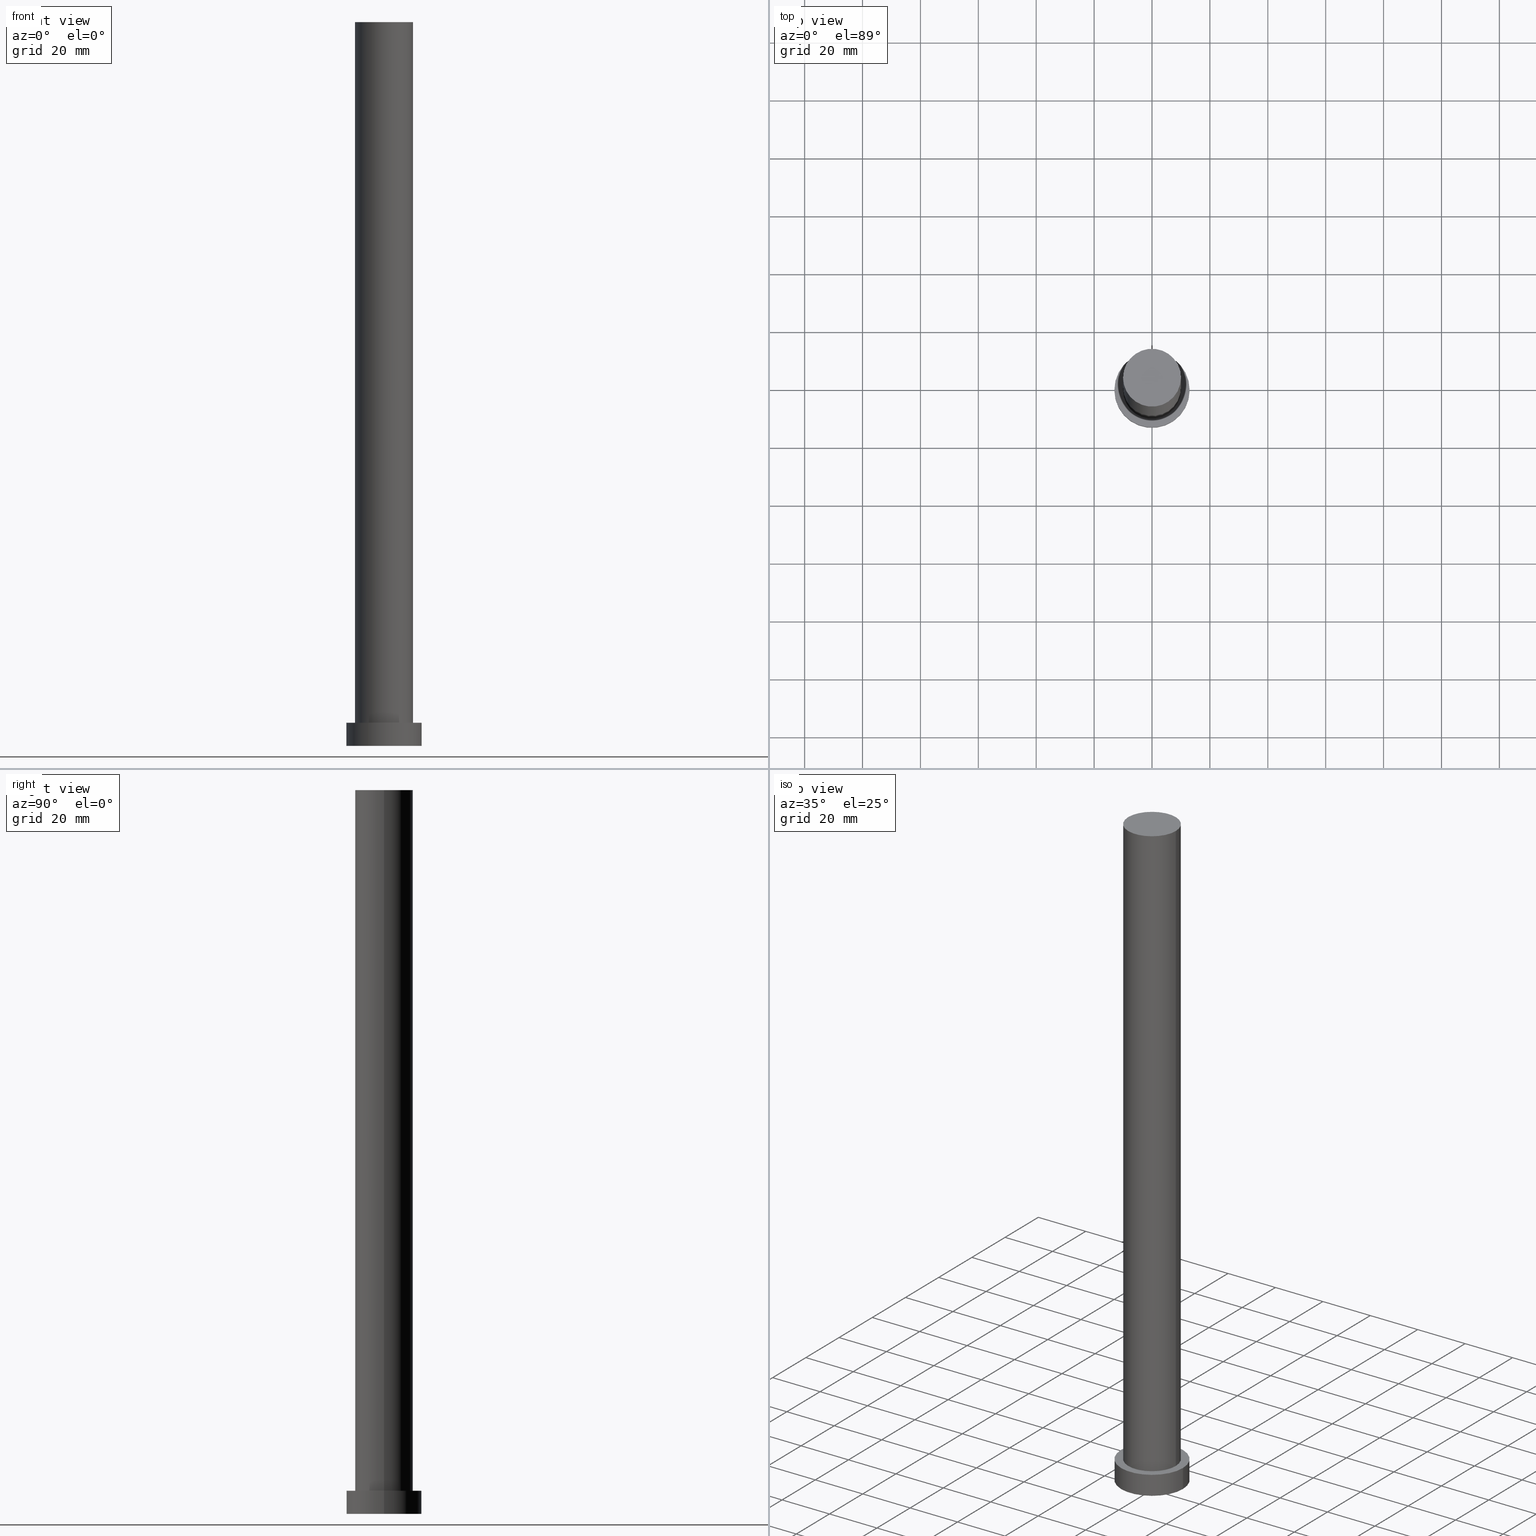
[diagram: canonical four-view strip — front | top / right | iso, engineering-drawing reading convention]
A machine part, canonical four-view strip (front | top / right | iso — engineering-drawing reading convention). The complete STEP part file that produces these views, byte-faithful:
ISO-10303-21;
HEADER;
FILE_DESCRIPTION (( 'STEP AP203' ),
    '1' );
FILE_NAME ('c22b.STEP',
    '2023-02-13T07:33:58',
    ( '' ),
    ( '' ),
    'SwSTEP 2.0',
    'SolidWorks 2019',
    '' );
FILE_SCHEMA (( 'CONFIG_CONTROL_DESIGN' ));
ENDSEC;

DATA;
#1 = CIRCLE ( 'NONE', #22, 13.00000000000000178 ) ;
#2 = CYLINDRICAL_SURFACE ( 'NONE', #247, 13.00000000000000178 ) ;
#3 = EDGE_CURVE ( 'NONE', #29, #190, #231, .T. ) ;
#4 = DIRECTION ( 'NONE',  ( -0.000000000000000000, -0.000000000000000000, -1.000000000000000000 ) ) ;
#5 = DIRECTION ( 'NONE',  ( 0.000000000000000000, 0.000000000000000000, 1.000000000000000000 ) ) ;
#6 = APPROVAL_ROLE ( '' ) ;
#7 = COORDINATED_UNIVERSAL_TIME_OFFSET ( 1, 0, .AHEAD. ) ;
#8 = CARTESIAN_POINT ( 'NONE',  ( 0.000000000000000000, 0.000000000000000000, 8.000000000000000000 ) ) ;
#9 = PERSON_AND_ORGANIZATION ( #131, #233 ) ;
#10 = LOCAL_TIME ( 8, 33, 58.00000000000000000, #162 ) ;
#11 = AXIS2_PLACEMENT_3D ( 'NONE', #8, #80, #246 ) ;
#12 = APPROVAL_STATUS ( 'not_yet_approved' ) ;
#13 = ORIENTED_EDGE ( 'NONE', *, *, #182, .F. ) ;
#14 = DIRECTION ( 'NONE',  ( 1.000000000000000000, 0.000000000000000000, -0.000000000000000000 ) ) ;
#15 = ORIENTED_EDGE ( 'NONE', *, *, #189, .T. ) ;
#16 = ADVANCED_FACE ( 'NONE', ( #244 ), #201, .F. ) ;
#17 = SHAPE_DEFINITION_REPRESENTATION ( #65, #137 ) ;
#18 = VERTEX_POINT ( 'NONE', #25 ) ;
#19 = DIRECTION ( 'NONE',  ( 1.000000000000000000, 0.000000000000000000, 0.000000000000000000 ) ) ;
#20 = CARTESIAN_POINT ( 'NONE',  ( 0.000000000000000000, 0.000000000000000000, 0.000000000000000000 ) ) ;
#21 = CIRCLE ( 'NONE', #81, 10.00000000000000000 ) ;
#22 = AXIS2_PLACEMENT_3D ( 'NONE', #23, #179, #180 ) ;
#23 = CARTESIAN_POINT ( 'NONE',  ( 0.000000000000000000, 0.000000000000000000, 8.000000000000000000 ) ) ;
#24 = EDGE_CURVE ( 'NONE', #133, #28, #1, .T. ) ;
#25 = CARTESIAN_POINT ( 'NONE',  ( -13.00000000000000178, 0.000000000000000000, 0.000000000000000000 ) ) ;
#26 = PERSON_AND_ORGANIZATION ( #131, #233 ) ;
#27 = ADVANCED_FACE ( 'NONE', ( #111 ), #2, .T. ) ;
#28 = VERTEX_POINT ( 'NONE', #161 ) ;
#29 = VERTEX_POINT ( 'NONE', #239 ) ;
#30 = AXIS2_PLACEMENT_3D ( 'NONE', #87, #107, #155 ) ;
#31 = ADVANCED_FACE ( 'NONE', ( #146 ), #50, .T. ) ;
#32 = CARTESIAN_POINT ( 'NONE',  ( 0.000000000000000000, 0.000000000000000000, 250.0000000000000000 ) ) ;
#33 = ORIENTED_EDGE ( 'NONE', *, *, #153, .F. ) ;
#34 = DATE_AND_TIME ( #48, #92 ) ;
#35 = AXIS2_PLACEMENT_3D ( 'NONE', #183, #5, #79 ) ;
#36 =( GEOMETRIC_REPRESENTATION_CONTEXT ( 3 ) GLOBAL_UNCERTAINTY_ASSIGNED_CONTEXT ( ( #37 ) ) GLOBAL_UNIT_ASSIGNED_CONTEXT ( ( #228, #223, #215 ) ) REPRESENTATION_CONTEXT ( 'NONE', 'WORKASPACE' ) );
#37 = UNCERTAINTY_MEASURE_WITH_UNIT (LENGTH_MEASURE( 1.000000000000000082E-05 ), #228, 'distance_accuracy_value', 'NONE');
#38 = AXIS2_PLACEMENT_3D ( 'NONE', #52, #130, #210 ) ;
#39 = VECTOR ( 'NONE', #4, 1000.000000000000000 ) ;
#40 = PERSON_AND_ORGANIZATION_ROLE ( 'creator' ) ;
#41 = DIRECTION ( 'NONE',  ( 1.000000000000000000, 0.000000000000000000, -0.000000000000000000 ) ) ;
#42 = EDGE_CURVE ( 'NONE', #70, #158, #21, .T. ) ;
#43 = VECTOR ( 'NONE', #128, 1000.000000000000000 ) ;
#44 = CALENDAR_DATE ( 2023, 13, 2 ) ;
#45 = DIRECTION ( 'NONE',  ( 1.000000000000000000, 0.000000000000000000, 0.000000000000000000 ) ) ;
#46 = PERSON_AND_ORGANIZATION_ROLE ( 'creator' ) ;
#47 = AXIS2_PLACEMENT_3D ( 'NONE', #143, #138, #214 ) ;
#48 = CALENDAR_DATE ( 2023, 13, 2 ) ;
#49 = CARTESIAN_POINT ( 'NONE',  ( 0.000000000000000000, 0.000000000000000000, 250.0000000000000000 ) ) ;
#50 = PLANE ( 'NONE',  #35 ) ;
#51 = EDGE_CURVE ( 'NONE', #18, #99, #108, .T. ) ;
#52 = CARTESIAN_POINT ( 'NONE',  ( 0.000000000000000000, 0.000000000000000000, 0.000000000000000000 ) ) ;
#53 = CC_DESIGN_PERSON_AND_ORGANIZATION_ASSIGNMENT ( #125, #126, ( #78 ) ) ;
#54 = ORIENTED_EDGE ( 'NONE', *, *, #42, .T. ) ;
#55 = VECTOR ( 'NONE', #144, 1000.000000000000000 ) ;
#56 = EDGE_CURVE ( 'NONE', #133, #18, #208, .T. ) ;
#57 = DIRECTION ( 'NONE',  ( -1.000000000000000000, 0.000000000000000000, 0.000000000000000000 ) ) ;
#58 = APPROVAL_STATUS ( 'not_yet_approved' ) ;
#59 = CARTESIAN_POINT ( 'NONE',  ( -10.00000000000000000, 0.000000000000000000, 8.000000000000000000 ) ) ;
#60 = COORDINATED_UNIVERSAL_TIME_OFFSET ( 1, 0, .AHEAD. ) ;
#61 = CARTESIAN_POINT ( 'NONE',  ( -10.00000000000000000, 0.000000000000000000, 250.0000000000000000 ) ) ;
#62 = CALENDAR_DATE ( 2023, 13, 2 ) ;
#63 = EDGE_LOOP ( 'NONE', ( #33, #222, #15, #91 ) ) ;
#64 = PRODUCT_DEFINITION ( 'NEZN�M�', '', #129, #252 ) ;
#65 = PRODUCT_DEFINITION_SHAPE ( 'NONE', 'NONE',  #64 ) ;
#66 = PERSON_AND_ORGANIZATION_ROLE ( 'design_supplier' ) ;
#67 = CC_DESIGN_DATE_AND_TIME_ASSIGNMENT ( #34, #104, ( #78 ) ) ;
#68 = DIRECTION ( 'NONE',  ( 0.000000000000000000, 0.000000000000000000, 1.000000000000000000 ) ) ;
#69 = FACE_OUTER_BOUND ( 'NONE', #151, .T. ) ;
#70 = VERTEX_POINT ( 'NONE', #169 ) ;
#71 = CC_DESIGN_PERSON_AND_ORGANIZATION_ASSIGNMENT ( #197, #40, ( #64 ) ) ;
#72 = MECHANICAL_CONTEXT ( 'NONE', #105, 'mechanical' ) ;
#73 = CARTESIAN_POINT ( 'NONE',  ( 0.000000000000000000, 0.000000000000000000, 8.000000000000000000 ) ) ;
#74 = DIRECTION ( 'NONE',  ( -1.000000000000000000, 0.000000000000000000, 0.000000000000000000 ) ) ;
#75 = PERSON_AND_ORGANIZATION_ROLE ( 'design_owner' ) ;
#76 = APPROVAL ( #12, 'NEUR�EN�' ) ;
#77 = CYLINDRICAL_SURFACE ( 'NONE', #216, 10.00000000000000000 ) ;
#78 = SECURITY_CLASSIFICATION ( '', '', #149 ) ;
#79 = DIRECTION ( 'NONE',  ( 1.000000000000000000, 0.000000000000000000, -0.000000000000000000 ) ) ;
#80 = DIRECTION ( 'NONE',  ( 0.000000000000000000, 0.000000000000000000, 1.000000000000000000 ) ) ;
#81 = AXIS2_PLACEMENT_3D ( 'NONE', #164, #136, #112 ) ;
#82 = AXIS2_PLACEMENT_3D ( 'NONE', #106, #195, #175 ) ;
#83 = CARTESIAN_POINT ( 'NONE',  ( -13.00000000000000178, 0.000000000000000000, 8.000000000000000000 ) ) ;
#84 = APPROVAL_ROLE ( '' ) ;
#85 = EDGE_LOOP ( 'NONE', ( #209, #237 ) ) ;
#86 = APPROVAL_DATE_TIME ( #148, #76 ) ;
#87 = CARTESIAN_POINT ( 'NONE',  ( 0.000000000000000000, 0.000000000000000000, 8.000000000000000000 ) ) ;
#88 = CC_DESIGN_APPROVAL ( #168, ( #129 ) ) ;
#89 = CARTESIAN_POINT ( 'NONE',  ( 10.00000000000000000, 1.224646799147353256E-15, 250.0000000000000000 ) ) ;
#90 = ORIENTED_EDGE ( 'NONE', *, *, #51, .T. ) ;
#91 = ORIENTED_EDGE ( 'NONE', *, *, #227, .T. ) ;
#92 = LOCAL_TIME ( 8, 33, 58.00000000000000000, #225 ) ;
#93 = ORIENTED_EDGE ( 'NONE', *, *, #202, .T. ) ;
#94 = CARTESIAN_POINT ( 'NONE',  ( 13.00000000000000178, 1.592040838891559293E-15, 0.000000000000000000 ) ) ;
#95 = DIRECTION ( 'NONE',  ( 0.000000000000000000, 0.000000000000000000, 1.000000000000000000 ) ) ;
#96 = LINE ( 'NONE', #61, #39 ) ;
#97 = APPROVAL ( #120, 'NEUR�EN�' ) ;
#98 = FACE_OUTER_BOUND ( 'NONE', #63, .T. ) ;
#99 = VERTEX_POINT ( 'NONE', #94 ) ;
#100 = DIRECTION ( 'NONE',  ( -0.000000000000000000, -0.000000000000000000, -1.000000000000000000 ) ) ;
#101 = ADVANCED_FACE ( 'NONE', ( #110, #69 ), #193, .T. ) ;
#102 = CIRCLE ( 'NONE', #11, 13.00000000000000178 ) ;
#103 = EDGE_LOOP ( 'NONE', ( #173, #194 ) ) ;
#104 = DATE_TIME_ROLE ( 'classification_date' ) ;
#105 = APPLICATION_CONTEXT ( 'configuration controlled 3d designs of mechanical parts and assemblies' ) ;
#106 = CARTESIAN_POINT ( 'NONE',  ( 0.000000000000000000, 0.000000000000000000, 250.0000000000000000 ) ) ;
#107 = DIRECTION ( 'NONE',  ( -0.000000000000000000, -0.000000000000000000, -1.000000000000000000 ) ) ;
#108 = CIRCLE ( 'NONE', #156, 13.00000000000000178 ) ;
#109 = ADVANCED_FACE ( 'NONE', ( #255 ), #234, .T. ) ;
#110 = FACE_BOUND ( 'NONE', #85, .T. ) ;
#111 = FACE_OUTER_BOUND ( 'NONE', #253, .T. ) ;
#112 = DIRECTION ( 'NONE',  ( 1.000000000000000000, 0.000000000000000000, 0.000000000000000000 ) ) ;
#113 = DIRECTION ( 'NONE',  ( 0.000000000000000000, 0.000000000000000000, 1.000000000000000000 ) ) ;
#114 = CARTESIAN_POINT ( 'NONE',  ( 0.000000000000000000, 0.000000000000000000, 0.000000000000000000 ) ) ;
#115 = VECTOR ( 'NONE', #211, 1000.000000000000000 ) ;
#116 = APPROVAL_PERSON_ORGANIZATION ( #26, #97, #6 ) ;
#117 = PRODUCT_RELATED_PRODUCT_CATEGORY ( 'detail', '', ( #250 ) ) ;
#118 = APPLICATION_PROTOCOL_DEFINITION ( 'international standard', 'config_control_design', 1994, #218 ) ;
#119 = APPROVAL_DATE_TIME ( #145, #168 ) ;
#120 = APPROVAL_STATUS ( 'not_yet_approved' ) ;
#121 = CLOSED_SHELL ( 'NONE', ( #220, #109, #27, #101, #16, #236, #31 ) ) ;
#122 = CC_DESIGN_PERSON_AND_ORGANIZATION_ASSIGNMENT ( #203, #46, ( #129 ) ) ;
#123 = FACE_OUTER_BOUND ( 'NONE', #251, .T. ) ;
#124 = LOCAL_TIME ( 8, 33, 58.00000000000000000, #7 ) ;
#125 = PERSON_AND_ORGANIZATION ( #131, #233 ) ;
#126 = PERSON_AND_ORGANIZATION_ROLE ( 'classification_officer' ) ;
#127 = DIRECTION ( 'NONE',  ( -1.000000000000000000, 0.000000000000000000, 0.000000000000000000 ) ) ;
#128 = DIRECTION ( 'NONE',  ( -0.000000000000000000, -0.000000000000000000, -1.000000000000000000 ) ) ;
#129 = PRODUCT_DEFINITION_FORMATION_WITH_SPECIFIED_SOURCE ( 'LIBOVOLN�', '', #250, .NOT_KNOWN. ) ;
#130 = DIRECTION ( 'NONE',  ( 0.000000000000000000, 0.000000000000000000, 1.000000000000000000 ) ) ;
#131 = PERSON ( 'NEUR�EN�', 'NEUR�EN�', 'NEUR�EN�', ('NEUR�EN�'), ('NEUR�EN�'), ('NEUR�EN�') ) ;
#132 = AXIS2_PLACEMENT_3D ( 'NONE', #163, #113, #41 ) ;
#133 = VERTEX_POINT ( 'NONE', #170 ) ;
#134 = APPLICATION_PROTOCOL_DEFINITION ( 'international standard', 'config_control_design', 1994, #105 ) ;
#135 = AXIS2_PLACEMENT_3D ( 'NONE', #49, #100, #74 ) ;
#136 = DIRECTION ( 'NONE',  ( 0.000000000000000000, 0.000000000000000000, 1.000000000000000000 ) ) ;
#137 = ADVANCED_BREP_SHAPE_REPRESENTATION ( 'c22b', ( #166, #213 ), #36 ) ;
#138 = DIRECTION ( 'NONE',  ( 0.000000000000000000, 0.000000000000000000, 1.000000000000000000 ) ) ;
#139 = APPROVAL_DATE_TIME ( #150, #97 ) ;
#140 = EDGE_CURVE ( 'NONE', #99, #18, #141, .T. ) ;
#141 = CIRCLE ( 'NONE', #38, 13.00000000000000178 ) ;
#142 = APPROVAL_ROLE ( '' ) ;
#143 = CARTESIAN_POINT ( 'NONE',  ( 0.000000000000000000, 0.000000000000000000, 8.000000000000000000 ) ) ;
#144 = DIRECTION ( 'NONE',  ( -0.000000000000000000, -0.000000000000000000, -1.000000000000000000 ) ) ;
#145 = DATE_AND_TIME ( #44, #181 ) ;
#146 = FACE_OUTER_BOUND ( 'NONE', #167, .T. ) ;
#147 = EDGE_CURVE ( 'NONE', #158, #70, #174, .T. ) ;
#148 = DATE_AND_TIME ( #245, #124 ) ;
#149 = SECURITY_CLASSIFICATION_LEVEL ( 'unclassified' ) ;
#150 = DATE_AND_TIME ( #62, #196 ) ;
#151 = EDGE_LOOP ( 'NONE', ( #171, #248 ) ) ;
#152 = ORIENTED_EDGE ( 'NONE', *, *, #56, .F. ) ;
#153 = EDGE_CURVE ( 'NONE', #70, #29, #191, .T. ) ;
#154 = ORIENTED_EDGE ( 'NONE', *, *, #147, .T. ) ;
#155 = DIRECTION ( 'NONE',  ( -1.000000000000000000, 0.000000000000000000, 0.000000000000000000 ) ) ;
#156 = AXIS2_PLACEMENT_3D ( 'NONE', #20, #95, #188 ) ;
#157 = CC_DESIGN_APPROVAL ( #97, ( #64 ) ) ;
#158 = VERTEX_POINT ( 'NONE', #224 ) ;
#159 = APPROVAL_PERSON_ORGANIZATION ( #200, #168, #142 ) ;
#160 = CC_DESIGN_DATE_AND_TIME_ASSIGNMENT ( #199, #241, ( #64 ) ) ;
#161 = CARTESIAN_POINT ( 'NONE',  ( 13.00000000000000178, 1.592040838891559293E-15, 8.000000000000000000 ) ) ;
#162 = COORDINATED_UNIVERSAL_TIME_OFFSET ( 1, 0, .AHEAD. ) ;
#163 = CARTESIAN_POINT ( 'NONE',  ( 0.000000000000000000, 0.000000000000000000, 0.000000000000000000 ) ) ;
#164 = CARTESIAN_POINT ( 'NONE',  ( 0.000000000000000000, 0.000000000000000000, 250.0000000000000000 ) ) ;
#165 = DIRECTION ( 'NONE',  ( 0.000000000000000000, 0.000000000000000000, 1.000000000000000000 ) ) ;
#166 = MANIFOLD_SOLID_BREP ( 'P�idat vysunut�m3', #121 ) ;
#167 = EDGE_LOOP ( 'NONE', ( #154, #54 ) ) ;
#168 = APPROVAL ( #58, 'NEUR�EN�' ) ;
#169 = CARTESIAN_POINT ( 'NONE',  ( 10.00000000000000000, 1.224646799147353256E-15, 250.0000000000000000 ) ) ;
#170 = CARTESIAN_POINT ( 'NONE',  ( -13.00000000000000178, 0.000000000000000000, 8.000000000000000000 ) ) ;
#171 = ORIENTED_EDGE ( 'NONE', *, *, #24, .T. ) ;
#172 = DIRECTION ( 'NONE',  ( -0.000000000000000000, -0.000000000000000000, -1.000000000000000000 ) ) ;
#173 = ORIENTED_EDGE ( 'NONE', *, *, #51, .F. ) ;
#174 = CIRCLE ( 'NONE', #82, 10.00000000000000000 ) ;
#175 = DIRECTION ( 'NONE',  ( 1.000000000000000000, 0.000000000000000000, 0.000000000000000000 ) ) ;
#176 = CARTESIAN_POINT ( 'NONE',  ( 0.000000000000000000, 0.000000000000000000, 8.000000000000000000 ) ) ;
#177 = CC_DESIGN_APPROVAL ( #76, ( #78 ) ) ;
#178 = CALENDAR_DATE ( 2023, 13, 2 ) ;
#179 = DIRECTION ( 'NONE',  ( 0.000000000000000000, 0.000000000000000000, 1.000000000000000000 ) ) ;
#180 = DIRECTION ( 'NONE',  ( 1.000000000000000000, 0.000000000000000000, 0.000000000000000000 ) ) ;
#181 = LOCAL_TIME ( 8, 33, 58.00000000000000000, #60 ) ;
#182 = EDGE_CURVE ( 'NONE', #28, #133, #102, .T. ) ;
#183 = CARTESIAN_POINT ( 'NONE',  ( 0.000000000000000000, 0.000000000000000000, 250.0000000000000000 ) ) ;
#184 = CARTESIAN_POINT ( 'NONE',  ( 0.000000000000000000, 0.000000000000000000, 8.000000000000000000 ) ) ;
#185 = PERSON_AND_ORGANIZATION ( #131, #233 ) ;
#186 = AXIS2_PLACEMENT_3D ( 'NONE', #176, #229, #14 ) ;
#187 = CC_DESIGN_PERSON_AND_ORGANIZATION_ASSIGNMENT ( #204, #66, ( #129 ) ) ;
#188 = DIRECTION ( 'NONE',  ( 1.000000000000000000, 0.000000000000000000, 0.000000000000000000 ) ) ;
#189 = EDGE_CURVE ( 'NONE', #158, #190, #96, .T. ) ;
#190 = VERTEX_POINT ( 'NONE', #59 ) ;
#191 = LINE ( 'NONE', #89, #115 ) ;
#192 = ORIENTED_EDGE ( 'NONE', *, *, #140, .T. ) ;
#193 = PLANE ( 'NONE',  #186 ) ;
#194 = ORIENTED_EDGE ( 'NONE', *, *, #140, .F. ) ;
#195 = DIRECTION ( 'NONE',  ( 0.000000000000000000, 0.000000000000000000, 1.000000000000000000 ) ) ;
#196 = LOCAL_TIME ( 8, 33, 58.00000000000000000, #219 ) ;
#197 = PERSON_AND_ORGANIZATION ( #131, #233 ) ;
#198 = CC_DESIGN_PERSON_AND_ORGANIZATION_ASSIGNMENT ( #185, #75, ( #250 ) ) ;
#199 = DATE_AND_TIME ( #178, #10 ) ;
#200 = PERSON_AND_ORGANIZATION ( #131, #233 ) ;
#201 = PLANE ( 'NONE',  #132 ) ;
#202 = EDGE_CURVE ( 'NONE', #28, #99, #221, .T. ) ;
#203 = PERSON_AND_ORGANIZATION ( #131, #233 ) ;
#204 = PERSON_AND_ORGANIZATION ( #131, #233 ) ;
#205 = ORIENTED_EDGE ( 'NONE', *, *, #202, .F. ) ;
#206 = CIRCLE ( 'NONE', #242, 10.00000000000000000 ) ;
#207 = ORIENTED_EDGE ( 'NONE', *, *, #189, .F. ) ;
#208 = LINE ( 'NONE', #83, #43 ) ;
#209 = ORIENTED_EDGE ( 'NONE', *, *, #227, .F. ) ;
#210 = DIRECTION ( 'NONE',  ( 1.000000000000000000, 0.000000000000000000, 0.000000000000000000 ) ) ;
#211 = DIRECTION ( 'NONE',  ( -0.000000000000000000, -0.000000000000000000, -1.000000000000000000 ) ) ;
#212 = ORIENTED_EDGE ( 'NONE', *, *, #3, .T. ) ;
#213 = AXIS2_PLACEMENT_3D ( 'NONE', #114, #68, #19 ) ;
#214 = DIRECTION ( 'NONE',  ( 1.000000000000000000, 0.000000000000000000, 0.000000000000000000 ) ) ;
#215 =( NAMED_UNIT ( * ) SI_UNIT ( $, .STERADIAN. ) SOLID_ANGLE_UNIT ( ) );
#216 = AXIS2_PLACEMENT_3D ( 'NONE', #32, #172, #127 ) ;
#217 = CYLINDRICAL_SURFACE ( 'NONE', #135, 10.00000000000000000 ) ;
#218 = APPLICATION_CONTEXT ( 'configuration controlled 3d designs of mechanical parts and assemblies' ) ;
#219 = COORDINATED_UNIVERSAL_TIME_OFFSET ( 1, 0, .AHEAD. ) ;
#220 = ADVANCED_FACE ( 'NONE', ( #123 ), #217, .T. ) ;
#221 = LINE ( 'NONE', #240, #55 ) ;
#222 = ORIENTED_EDGE ( 'NONE', *, *, #147, .F. ) ;
#223 =( NAMED_UNIT ( * ) PLANE_ANGLE_UNIT ( ) SI_UNIT ( $, .RADIAN. ) );
#224 = CARTESIAN_POINT ( 'NONE',  ( -10.00000000000000000, 0.000000000000000000, 250.0000000000000000 ) ) ;
#225 = COORDINATED_UNIVERSAL_TIME_OFFSET ( 1, 0, .AHEAD. ) ;
#226 = CC_DESIGN_SECURITY_CLASSIFICATION ( #78, ( #129 ) ) ;
#227 = EDGE_CURVE ( 'NONE', #190, #29, #206, .T. ) ;
#228 =( LENGTH_UNIT ( ) NAMED_UNIT ( * ) SI_UNIT ( .MILLI., .METRE. ) );
#229 = DIRECTION ( 'NONE',  ( 0.000000000000000000, 0.000000000000000000, 1.000000000000000000 ) ) ;
#230 = ORIENTED_EDGE ( 'NONE', *, *, #153, .T. ) ;
#231 = CIRCLE ( 'NONE', #47, 10.00000000000000000 ) ;
#232 = EDGE_LOOP ( 'NONE', ( #13, #93, #192, #152 ) ) ;
#233 = ORGANIZATION ( 'NEUR�EN�', 'NEUR�EN�', '' ) ;
#234 = CYLINDRICAL_SURFACE ( 'NONE', #30, 13.00000000000000178 ) ;
#235 = ORIENTED_EDGE ( 'NONE', *, *, #42, .F. ) ;
#236 = ADVANCED_FACE ( 'NONE', ( #98 ), #77, .T. ) ;
#237 = ORIENTED_EDGE ( 'NONE', *, *, #3, .F. ) ;
#238 = APPROVAL_PERSON_ORGANIZATION ( #9, #76, #84 ) ;
#239 = CARTESIAN_POINT ( 'NONE',  ( 10.00000000000000000, 1.224646799147353256E-15, 8.000000000000000000 ) ) ;
#240 = CARTESIAN_POINT ( 'NONE',  ( 13.00000000000000178, 1.592040838891559293E-15, 8.000000000000000000 ) ) ;
#241 = DATE_TIME_ROLE ( 'creation_date' ) ;
#242 = AXIS2_PLACEMENT_3D ( 'NONE', #184, #165, #45 ) ;
#243 = DIRECTION ( 'NONE',  ( -0.000000000000000000, -0.000000000000000000, -1.000000000000000000 ) ) ;
#244 = FACE_OUTER_BOUND ( 'NONE', #103, .T. ) ;
#245 = CALENDAR_DATE ( 2023, 13, 2 ) ;
#246 = DIRECTION ( 'NONE',  ( 1.000000000000000000, 0.000000000000000000, 0.000000000000000000 ) ) ;
#247 = AXIS2_PLACEMENT_3D ( 'NONE', #73, #243, #57 ) ;
#248 = ORIENTED_EDGE ( 'NONE', *, *, #182, .T. ) ;
#249 = ORIENTED_EDGE ( 'NONE', *, *, #24, .F. ) ;
#250 = PRODUCT ( 'c22b', 'c22b', '', ( #72 ) ) ;
#251 = EDGE_LOOP ( 'NONE', ( #235, #230, #212, #207 ) ) ;
#252 = DESIGN_CONTEXT ( 'detailed design', #218, 'design' ) ;
#253 = EDGE_LOOP ( 'NONE', ( #205, #249, #254, #90 ) ) ;
#254 = ORIENTED_EDGE ( 'NONE', *, *, #56, .T. ) ;
#255 = FACE_OUTER_BOUND ( 'NONE', #232, .T. ) ;
ENDSEC;
END-ISO-10303-21;
